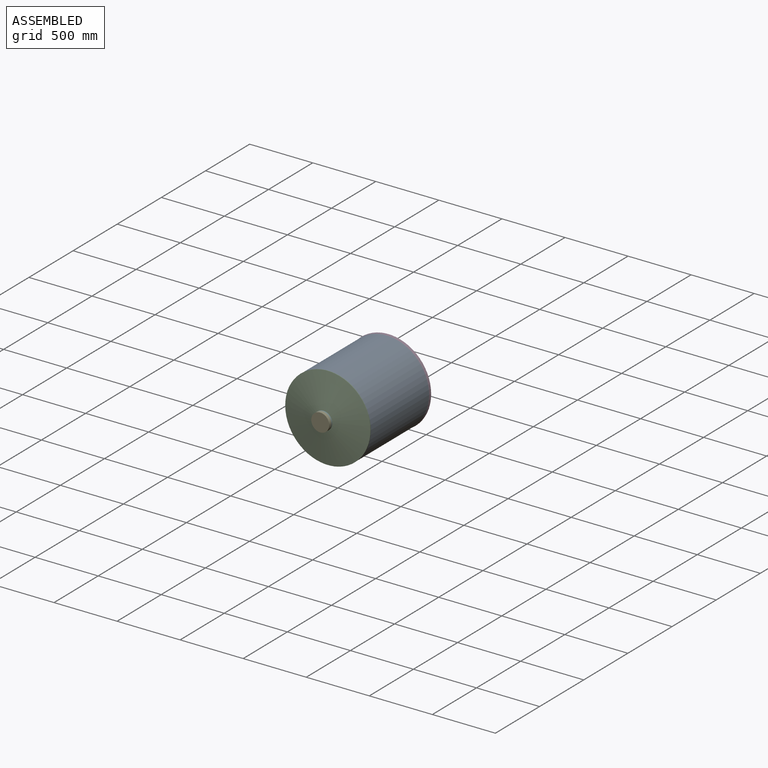
[diagram: assembled view]
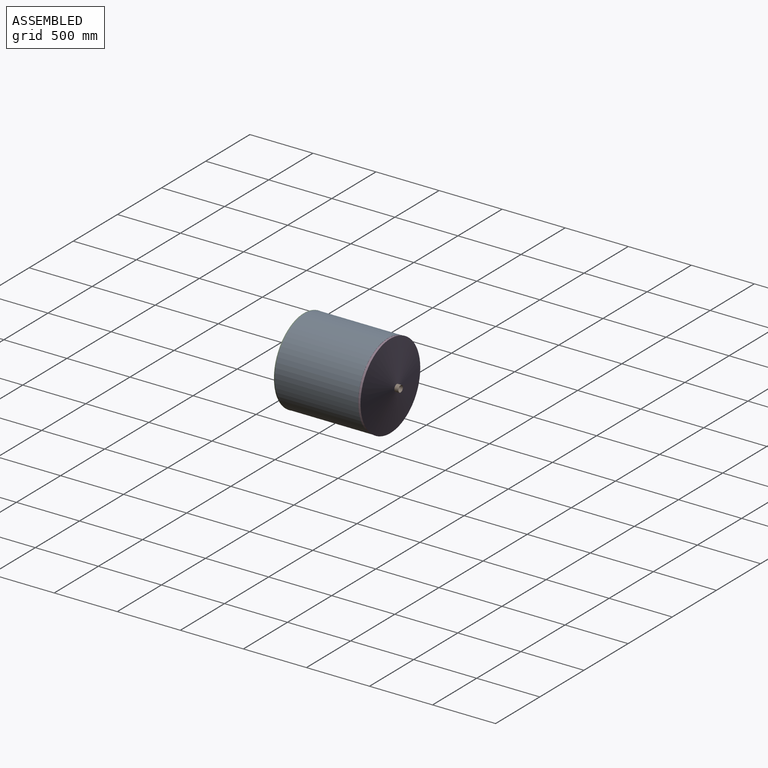
[diagram: assembled view, second angle]
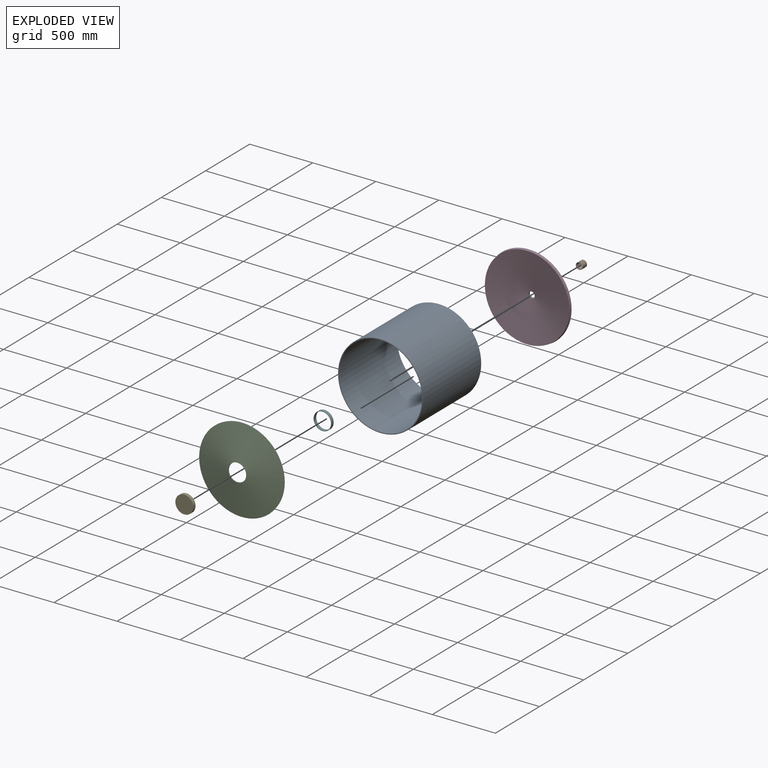
[diagram: exploded view]
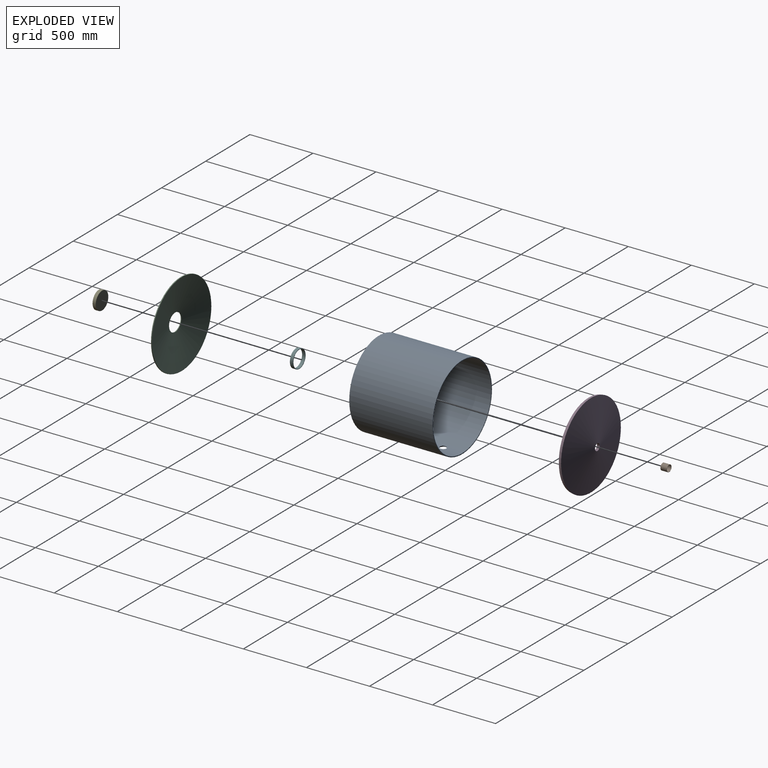
[diagram: exploded view, second angle]
ASSEMBLY  parts=6 mates=5
PART A: 5 faces, bbox 673.1x673.1x660.4 mm
  f0: cylinder r=330.2mm len=660.4mm, axis (0,0,-1), area 1368103.1mm2, adj f2,f3,f4
  f1: cylinder r=336.55mm len=673.1mm, axis (0,0,-1), area 1394451.9mm2, adj f2,f3,f4
  f2: plane 673.1x673.1mm, normal (0,0,1), area 13301.1mm2, adj f0,f1
  f3: plane 673.1x673.1mm, normal (0,0,-1), area 13301.1mm2, adj f0,f1
  f4: cylinder r=25.4mm len=50.8mm, axis (0,-1,0), area 1014.9mm2, adj f0,f1
PART B: 4 faces, bbox 53.3x50.8x53.3 mm
  f0: cylinder r=25.4mm len=50.8mm, axis (0,1,0), area 8107.3mm2, adj f2,f3
  f1: cylinder r=26.67mm len=53.34mm, axis (0,1,0), area 8512.7mm2, adj f2,f3
  f2: plane 53.34x53.34mm, normal (0,-1,0), area 207.8mm2, adj f0,f1
  f3: plane 53.34x53.34mm, normal (0,1,0), area 207.8mm2, adj f0,f1
PART C: 4 faces, bbox 675.5x675.5x57 mm
  f0: cone r=336.55mm half-angle=10.8deg, axis (0,0,1), area 13451.5mm2, adj f2,f3
  f1: cone r=69.85mm half-angle=10.8deg, axis (0,0,1), area 2810.6mm2, adj f2,f3
  f2: cone r=71.04mm half-angle=79.2deg, axis (0,0,-1), area 348656.2mm2, adj f0,f1
  f3: cone r=69.85mm half-angle=79.2deg, axis (0,0,-1), area 346629.4mm2, adj f0,f1
PART D: 4 faces, bbox 677.2x677.2x70.9 mm
  f0: cone r=25.4mm half-angle=9.3deg, axis (0,0,-1), area 3295.2mm2, adj f2,f3
  f1: cone r=336.55mm half-angle=9.3deg, axis (0,0,-1), area 43021mm2, adj f2,f3
  f2: cone r=338.6mm half-angle=80.7deg, axis (0,0,1), area 362546.6mm2, adj f0,f1
  f3: cone r=335.32mm half-angle=80.7deg, axis (0,0,1), area 356060.8mm2, adj f0,f1
PART E: 3 faces, bbox 142.2x142.2x25.4 mm
  f0: cylinder r=71.12mm len=142.24mm, axis (0,0,-1), area 11350.2mm2, adj f1,f2
  f1: plane 142.24x142.24mm, normal (0,0,1), area 15890.3mm2, adj f0
  f2: plane 142.24x142.24mm, normal (0,0,-1), area 15890.3mm2, adj f0
PART F: 4 faces, bbox 142.2x142.2x25.4 mm
  f0: cylinder r=67.31mm len=134.62mm, axis (0,0,-1), area 10742.2mm2, adj f2,f3
  f1: cylinder r=71.12mm len=142.24mm, axis (0,0,-1), area 11350.2mm2, adj f2,f3
  f2: plane 142.24x142.24mm, normal (0,0,1), area 1656.9mm2, adj f0,f1
  f3: plane 142.24x142.24mm, normal (0,0,-1), area 1656.9mm2, adj f0,f1
PLACE A rot(axis=(1,0,0),90deg) t=(269.02,-616.65,273.16)mm
PLACE B rot(axis=(-1,0,0),180deg) t=(269.02,-565.85,273.16)mm
PLACE C rot(axis=(1,0,0),90deg) t=(269.02,-1277.05,273.16)mm
PLACE D rot(axis=(1,0,0),90deg) t=(269.02,-609.13,273.16)mm
PLACE E rot(axis=(-1,0,0),90deg) t=(269.02,-1369.07,273.16)mm
PLACE F rot(axis=(-1,0,0),90deg) t=(269.02,-1343.67,273.16)mm
MATE revolute A.f1 <-> D.f0  axis (0,1,0) through (269.02,-616.65,273.16)mm
MATE fastened B.f1 <-> D.f0  axis (0,-1,0) through (269.02,-565.85,273.16)mm
MATE fastened C.f0 <-> A.f1  axis (0,-1,0) through (269.02,-1277.05,273.16)mm
MATE fastened E.f0 <-> F.f1  axis (0,1,0) through (269.02,-1343.67,273.16)mm
MATE fastened C.f0 <-> F.f1  axis (0,-1,0) through (269.02,-1330.97,273.16)mm
